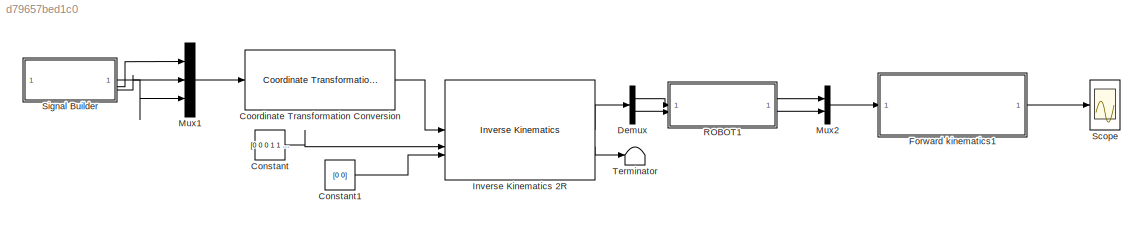
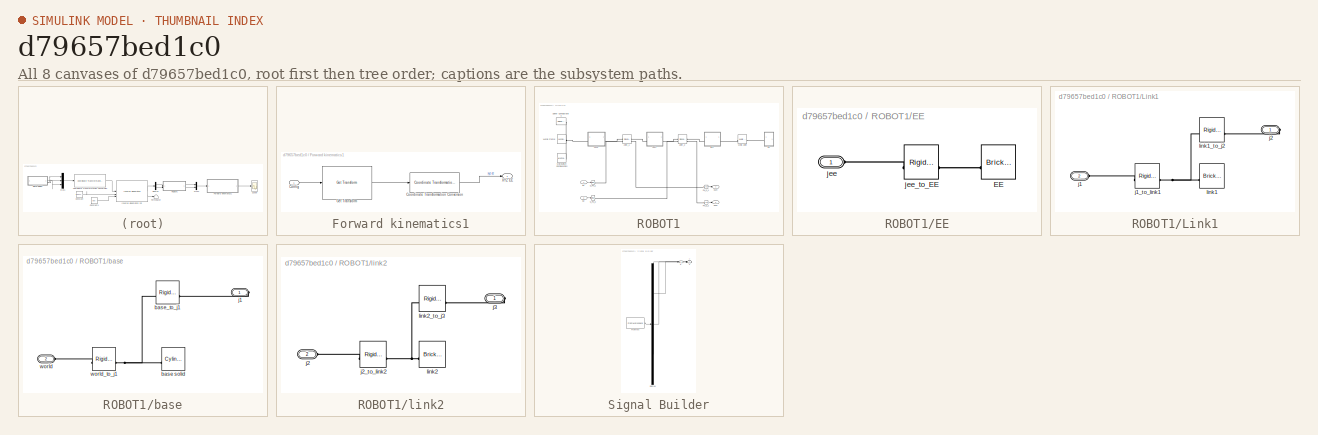
[diagram: thumbnail index - all 8 canvases of the model, root first then tree order]
MODEL slx_d79657bed1c0
KIND model
CONFIG AbsTol = auto
CONFIG EnableMultiTasking = off
CONFIG FixedStep = auto
CONFIG MaxStep = auto
CONFIG MinStep = auto
CONFIG RelTol = 1e-3
CONFIG SampleTimeConstraint = Unconstrained
CONFIG SolverName = VariableStepAuto
CONFIG StartTime = 0.0
CONFIG StopTime = 10.0
BLOCK [Constant] Constant
  Value = [0 0 0 1 1 1]
BLOCK [Constant] Constant1
  Value = [0 0]
BLOCK [Reference] Coordinate Transformation Conversion  REF=robotcorelib/Coordinate Transformation Conversion
  LibrarySourceBlock = navlib/Utilities/Coordinate Transformation Conversion
  SourceBlock = robotcorelib/Coordinate Transformation Conversion
  SourceType = robotics.slcore.internal.block.CoordinateTransformationConversion
BLOCK [Demux] Demux
  Outputs = 2
BLOCK [SubSystem] Forward kinematics1
BLOCK [Inport] Forward kinematics1/Config
BLOCK [Reference] Forward kinematics1/Coordinate Transformation Conversion  REF=robotcorelib/Coordinate Transformation Conversion
  LibrarySourceBlock = robotutilslib/Coordinate Transformation Conversion
  SourceBlock = robotcorelib/Coordinate Transformation Conversion
  SourceType = robotics.slcore.internal.block.CoordinateTransformationConversion
BLOCK [Reference] Forward kinematics1/Get Transform  REF=robotmaniplib/Get Transform
  SourceBlock = robotmaniplib/Get Transform
  SourceType = Get Transform
BLOCK [Outport] Forward kinematics1/XYZ EE
BLOCK [Reference] Inverse Kinematics 2R  REF=robotmaniplib/Inverse Kinematics
  SourceBlock = robotmaniplib/Inverse Kinematics
  SourceType = Inverse Kinematics
BLOCK [Mux] Mux1
  DisplayOption = bar
  Inputs = 3
BLOCK [Mux] Mux2
  DisplayOption = bar
  Inputs = 2
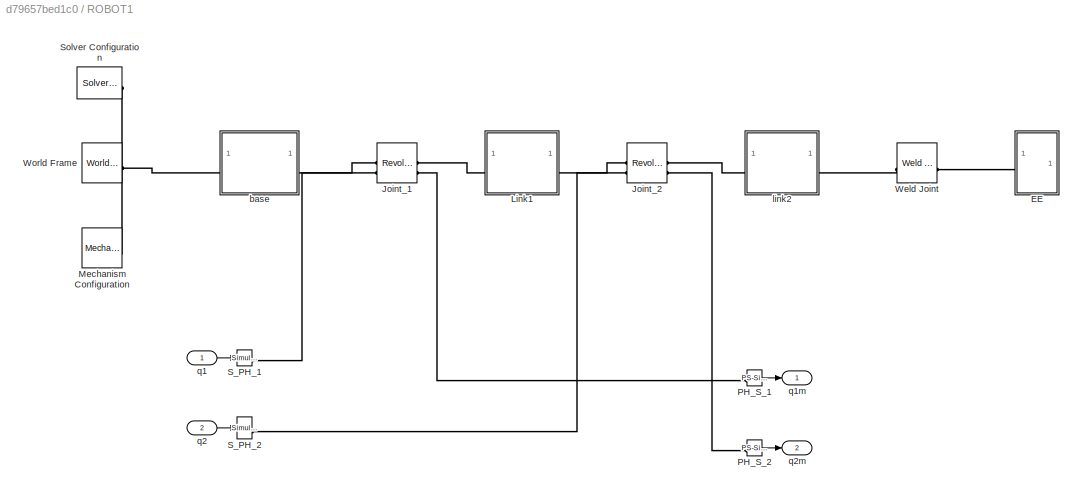
BLOCK [SubSystem] ROBOT1
BLOCK [SubSystem] ROBOT1/EE
BLOCK [Reference] ROBOT1/EE/EE  REF=sm_lib/Body Elements/Brick Solid
  NameLocation = top
  SourceBlock = sm_lib/Body Elements/Brick Solid
  SourceType = Brick Solid
BLOCK [PMIOPort] ROBOT1/EE/jee
  Side = Left
BLOCK [Reference] ROBOT1/EE/jee_to_EE  REF=sm_lib/Frames and
Transforms/Rigid
Transform
  SourceBlock = sm_lib/Frames and\nTransforms/Rigid\nTransform
  SourceType = Rigid\nTransform
BLOCK [Reference] ROBOT1/Joint_1  REF=sm_lib/Joints/Revolute Joint
  SourceBlock = sm_lib/Joints/Revolute Joint
  SourceType = Revolute Joint
BLOCK [Reference] ROBOT1/Joint_2  REF=sm_lib/Joints/Revolute Joint
  SourceBlock = sm_lib/Joints/Revolute Joint
  SourceType = Revolute Joint
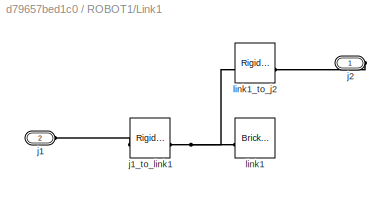
BLOCK [SubSystem] ROBOT1/Link1
BLOCK [PMIOPort] ROBOT1/Link1/j1
  Port = 2
  Side = Left
BLOCK [Reference] ROBOT1/Link1/j1_to_link1  REF=sm_lib/Frames and
Transforms/Rigid
Transform
  SourceBlock = sm_lib/Frames and\nTransforms/Rigid\nTransform
  SourceType = Rigid\nTransform
BLOCK [PMIOPort] ROBOT1/Link1/j2
  Side = Right
BLOCK [Reference] ROBOT1/Link1/link1  REF=sm_lib/Body Elements/Brick Solid
  SourceBlock = sm_lib/Body Elements/Brick Solid
  SourceType = Brick Solid
BLOCK [Reference] ROBOT1/Link1/link1_to_j2  REF=sm_lib/Frames and
Transforms/Rigid
Transform
  SourceBlock = sm_lib/Frames and\nTransforms/Rigid\nTransform
  SourceType = Rigid\nTransform
BLOCK [Reference] ROBOT1/Mechanism Configuration  REF=sm_lib/Utilities/Mechanism
Configuration
  SourceBlock = sm_lib/Utilities/Mechanism\nConfiguration
  SourceType = Mechanism\nConfiguration
BLOCK [Reference] ROBOT1/PH_S_1  REF=nesl_utility/PS-Simulink
Converter
  SourceBlock = nesl_utility/PS-Simulink\nConverter
  SourceType = PS-Simulink\nConverter
BLOCK [Reference] ROBOT1/PH_S_2  REF=nesl_utility/PS-Simulink
Converter
  SourceBlock = nesl_utility/PS-Simulink\nConverter
  SourceType = PS-Simulink\nConverter
BLOCK [Reference] ROBOT1/S_PH_1  REF=nesl_utility/Simulink-PS
Converter
  SourceBlock = nesl_utility/Simulink-PS\nConverter
  SourceType = Simulink-PS\nConverter
BLOCK [Reference] ROBOT1/S_PH_2  REF=nesl_utility/Simulink-PS
Converter
  SourceBlock = nesl_utility/Simulink-PS\nConverter
  SourceType = Simulink-PS\nConverter
BLOCK [Reference] ROBOT1/Solver Configuration  REF=nesl_utility/Solver
Configuration
  SourceBlock = nesl_utility/Solver\nConfiguration
  SourceType = Solver\nConfiguration
BLOCK [Reference] ROBOT1/Weld Joint  REF=sm_lib/Joints/Weld Joint
  SourceBlock = sm_lib/Joints/Weld Joint
  SourceType = Weld Joint
BLOCK [Reference] ROBOT1/World Frame  REF=sm_lib/Frames and
Transforms/World Frame
  SourceBlock = sm_lib/Frames and\nTransforms/World Frame
  SourceType = World Frame
BLOCK [SubSystem] ROBOT1/base
BLOCK [Reference] ROBOT1/base/base solid  REF=sm_lib/Body Elements/Cylindrical Solid
  NameLocation = top
  SourceBlock = sm_lib/Body Elements/Cylindrical Solid
  SourceType = Cylindrical Solid
BLOCK [Reference] ROBOT1/base/base_to_j1  REF=sm_lib/Frames and
Transforms/Rigid
Transform
  SourceBlock = sm_lib/Frames and\nTransforms/Rigid\nTransform
  SourceType = Rigid\nTransform
BLOCK [PMIOPort] ROBOT1/base/j1
  Side = Right
BLOCK [PMIOPort] ROBOT1/base/world
  Port = 2
  Side = Left
BLOCK [Reference] ROBOT1/base/world_to_j1  REF=sm_lib/Frames and
Transforms/Rigid
Transform
  SourceBlock = sm_lib/Frames and\nTransforms/Rigid\nTransform
  SourceType = Rigid\nTransform
BLOCK [SubSystem] ROBOT1/link2
BLOCK [PMIOPort] ROBOT1/link2/j2
  Port = 2
  Side = Left
BLOCK [Reference] ROBOT1/link2/j2_to_link2  REF=sm_lib/Frames and
Transforms/Rigid
Transform
  SourceBlock = sm_lib/Frames and\nTransforms/Rigid\nTransform
  SourceType = Rigid\nTransform
BLOCK [PMIOPort] ROBOT1/link2/j3
  Side = Right
BLOCK [Reference] ROBOT1/link2/link2  REF=sm_lib/Body Elements/Brick Solid
  SourceBlock = sm_lib/Body Elements/Brick Solid
  SourceType = Brick Solid
BLOCK [Reference] ROBOT1/link2/link2_to_j3  REF=sm_lib/Frames and
Transforms/Rigid
Transform
  SourceBlock = sm_lib/Frames and\nTransforms/Rigid\nTransform
  SourceType = Rigid\nTransform
BLOCK [Inport] ROBOT1/q1
BLOCK [Outport] ROBOT1/q1m
BLOCK [Inport] ROBOT1/q2
  Port = 2
BLOCK [Outport] ROBOT1/q2m
  Port = 2
BLOCK [Scope] Scope
  Floating = off
  NumInputPorts = 1
  ScopeSpecificationString = Simulink.scopes.TimeScopeBlockCfg('CurrentConfiguration', extmgr.ConfigurationSet(extmgr.Configuration('Core','General UI',true),extmgr.Configuration('Core','Source UI',true),extmgr.Configuration('Sources','WiredSimulink',true,'DataLoggingVariableName','ScopeData1'),extmgr.Configuration('Visuals','Time Domain',true,'SerializedDisplays',{struct('MinYLimReal','0.09149','MaxYLimReal','0.28052','YLabe...<+1512ch>
BLOCK [SubSystem] Signal Builder
  ClipboardFcn = sigbuilder_block('clipboard');
  CloseFcn = sigbuilder_block('close');
  ContinueFcn = sigbuilder_block('continue');
  CopyFcn = sigbuilder_block('copy');
  DeleteFcn = sigbuilder_block('delete');
  LoadFcn = sigbuilder_block('load');
  MaskHideContents = on
  ModelCloseFcn = sigbuilder_block('modelClose');
  NameChangeFcn = sigbuilder_block('namechange');
  OpenFcn = sigbuilder_block('open',[100.8 93 550.8 400.2 ]);
  PauseFcn = sigbuilder_block('pause');
  PreSaveFcn = sigbuilder_block('preSave');
  StartFcn = sigbuilder_block('start');
  StopFcn = sigbuilder_block('stop');
  Tag = STV Subsys
BLOCK [Demux] Signal Builder/Demux
  DisplayOption = none
  Outputs = 3
  Tag = STV Demux
BLOCK [FromWorkspace] Signal Builder/FromWs
  Tag = STV FromWs
  VariableName = tuvar
BLOCK [Outport] Signal Builder/Z
  Tag = STV Outport
BLOCK [Outport] Signal Builder/x
  Port = 2
  Tag = STV Outport
BLOCK [Outport] Signal Builder/y
  Port = 3
  Tag = STV Outport
BLOCK [Terminator] Terminator
LINE Constant1:1 -> Inverse Kinematics 2R:3
LINE Constant:1 -> Inverse Kinematics 2R:2
LINE Coordinate Transformation Conversion:1 -> Inverse Kinematics 2R:1
LINE Demux:1 -> ROBOT1:1
LINE Demux:2 -> ROBOT1:2
LINE Forward kinematics1/Config:1 -> Forward kinematics1/Get Transform:1
LINE Forward kinematics1/Coordinate Transformation Conversion:1 -> Forward kinematics1/XYZ EE:1
LINE Forward kinematics1/Get Transform:1 -> Forward kinematics1/Coordinate Transformation Conversion:1
LINE Forward kinematics1:1 -> Scope:1
LINE Inverse Kinematics 2R:1 -> Demux:1
LINE Inverse Kinematics 2R:2 -> Terminator:1
LINE Mux1:1 -> Coordinate Transformation Conversion:1
LINE Mux2:1 -> Forward kinematics1:1
LINE ROBOT1/PH_S_1:1 -> ROBOT1/q1m:1
LINE ROBOT1/PH_S_2:1 -> ROBOT1/q2m:1
LINE ROBOT1/q1:1 -> ROBOT1/S_PH_1:1
LINE ROBOT1/q2:1 -> ROBOT1/S_PH_2:1
LINE ROBOT1:1 -> Mux2:1
LINE ROBOT1:2 -> Mux2:2
LINE Signal Builder:1 -> Mux1:3
LINE Signal Builder:2 -> Mux1:1
LINE Signal Builder:3 -> Mux1:2
PLINE ROBOT1/EE/EE:RConn1 -- ROBOT1/EE/jee_to_EE:RConn1
PLINE ROBOT1/EE/jee:RConn1 -- ROBOT1/EE/jee_to_EE:LConn1
PLINE ROBOT1/EE:LConn1 -- ROBOT1/Weld Joint:RConn1
PLINE ROBOT1/Joint_1:LConn1 -- ROBOT1/base:RConn1
PLINE ROBOT1/Joint_1:LConn2 -- ROBOT1/S_PH_1:RConn1
PLINE ROBOT1/Joint_1:RConn1 -- ROBOT1/Link1:LConn1
PLINE ROBOT1/Joint_1:RConn2 -- ROBOT1/PH_S_1:LConn1
PLINE ROBOT1/Joint_2:LConn1 -- ROBOT1/Link1:RConn1
PLINE ROBOT1/Joint_2:LConn2 -- ROBOT1/S_PH_2:RConn1
PLINE ROBOT1/Joint_2:RConn1 -- ROBOT1/link2:LConn1
PLINE ROBOT1/Joint_2:RConn2 -- ROBOT1/PH_S_2:LConn1
PLINE ROBOT1/Link1/j1:RConn1 -- ROBOT1/Link1/j1_to_link1:LConn1
PNET net1: ROBOT1/Link1/j1_to_link1:RConn1 -- ROBOT1/Link1/link1:RConn1 -- ROBOT1/Link1/link1_to_j2:LConn1
PLINE ROBOT1/Link1/j2:RConn1 -- ROBOT1/Link1/link1_to_j2:RConn1
PNET net2: ROBOT1/Mechanism Configuration:RConn1 -- ROBOT1/Solver Configuration:RConn1 -- ROBOT1/World Frame:RConn1 -- ROBOT1/base:LConn1
PLINE ROBOT1/Weld Joint:LConn1 -- ROBOT1/link2:RConn1
PNET net3: ROBOT1/base/base solid:RConn1 -- ROBOT1/base/base_to_j1:LConn1 -- ROBOT1/base/world_to_j1:RConn1
PLINE ROBOT1/base/base_to_j1:RConn1 -- ROBOT1/base/j1:RConn1
PLINE ROBOT1/base/world:RConn1 -- ROBOT1/base/world_to_j1:LConn1
PLINE ROBOT1/link2/j2:RConn1 -- ROBOT1/link2/j2_to_link2:LConn1
PNET net4: ROBOT1/link2/j2_to_link2:RConn1 -- ROBOT1/link2/link2:RConn1 -- ROBOT1/link2/link2_to_j3:LConn1
PLINE ROBOT1/link2/j3:RConn1 -- ROBOT1/link2/link2_to_j3:RConn1
note: PNET lines group multi-terminal physical nets as a canonical sorted terminal list (undirected conserving connections); 2-terminal nets keep the pairwise PLINE form
